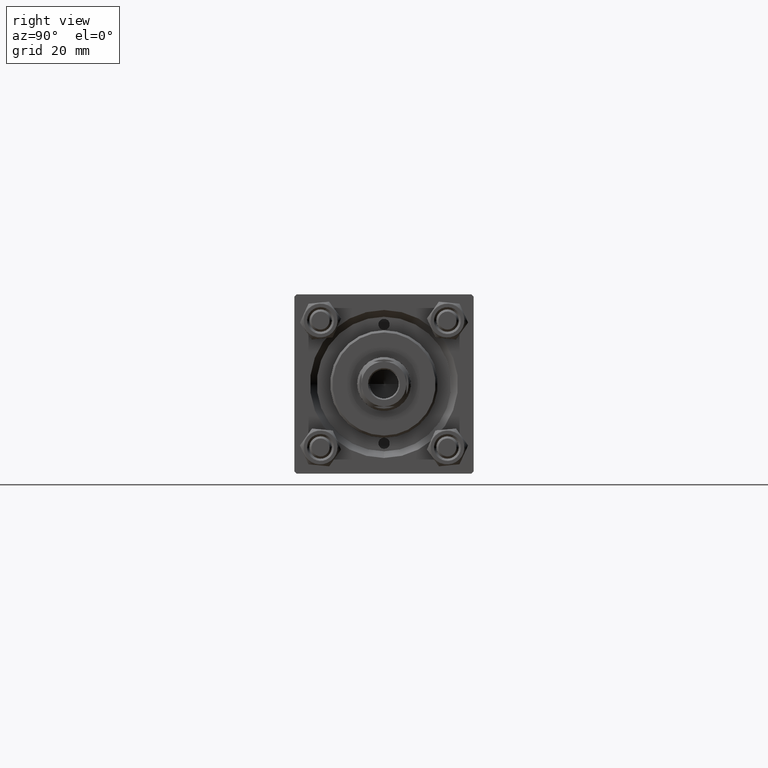
[diagram: clean part render]
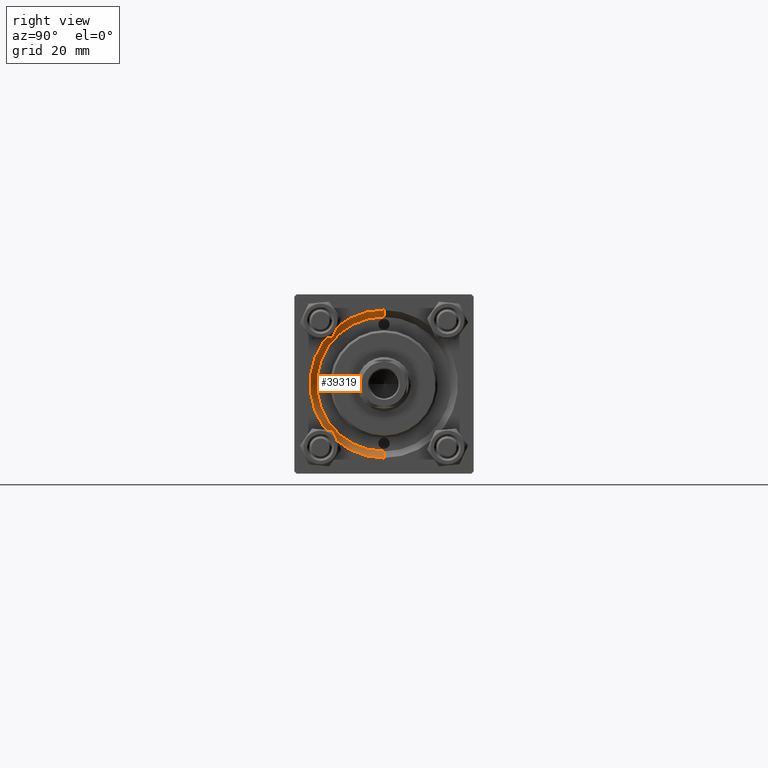
[diagram: same view with one face highlighted and labeled with its STEP entity id]
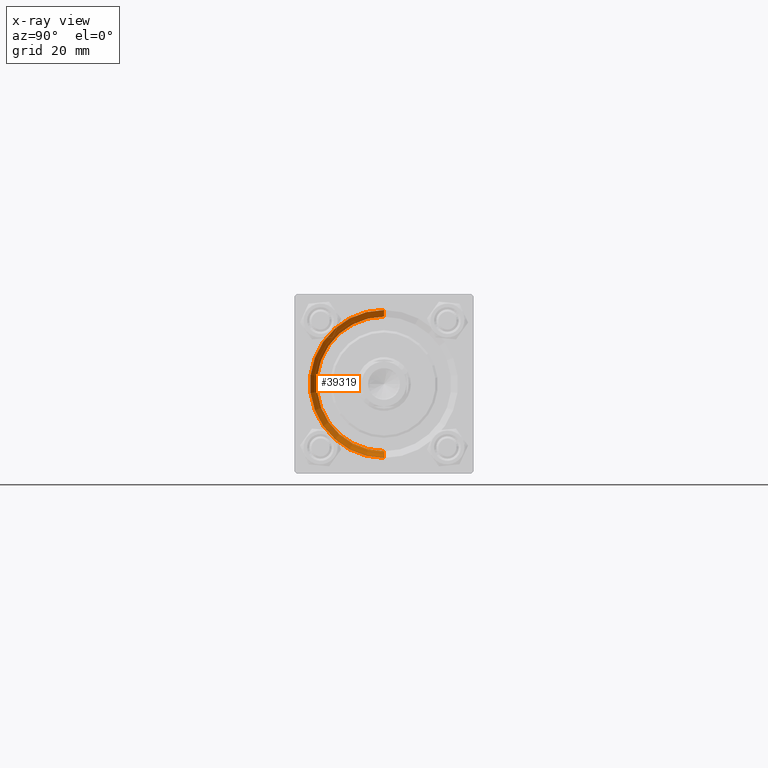
[diagram: x-ray of the same camera — body ghosted, the highlighted face saturated]
A machine part, right view. The second image highlights one B-rep face of the part: STEP entity #39319.
The next image is the same camera in x-ray: the body ghosted, the highlighted face saturated — about 0% of this face is hidden behind the body in this view.
In plain terms, the highlighted conical surface has half-angle 45 deg.
Its self-contained STEP definition (entity closure, byte-faithful):
#641 = VERTEX_POINT ( 'NONE', #21679 ) ;
#4801 = ORIENTED_EDGE ( 'NONE', *, *, #33085, .T. ) ;
#6487 = CARTESIAN_POINT ( 'NONE',  ( 117.5000000000000000, 0.000000000000000000, 0.000000000000000000 ) ) ;
#7003 = AXIS2_PLACEMENT_3D ( 'NONE', #6487, #29970, #11276 ) ;
#7033 = CIRCLE ( 'NONE', #11928, 16.50000000000001421 ) ;
#10416 = AXIS2_PLACEMENT_3D ( 'NONE', #49106, #30190, #29944 ) ;
#11276 = DIRECTION ( 'NONE',  ( 0.000000000000000000, 0.000000000000000000, 1.000000000000000000 ) ) ;
#11367 = CARTESIAN_POINT ( 'NONE',  ( 117.5000000000000000, 0.000000000000000000, -15.00000000000000000 ) ) ;
#11928 = AXIS2_PLACEMENT_3D ( 'NONE', #18464, #33588, #14419 ) ;
#13439 = EDGE_CURVE ( 'NONE', #641, #47069, #7033, .T. ) ;
#13992 = ORIENTED_EDGE ( 'NONE', *, *, #22840, .F. ) ;
#14419 = DIRECTION ( 'NONE',  ( 0.000000000000000000, 0.000000000000000000, 1.000000000000000000 ) ) ;
#15953 = VERTEX_POINT ( 'NONE', #23037 ) ;
#16683 = DIRECTION ( 'NONE',  ( 0.7071067811865474617, 8.659560562354932858E-17, 0.7071067811865474617 ) ) ;
#18464 = CARTESIAN_POINT ( 'NONE',  ( 119.0000000000000142, 0.000000000000000000, 0.000000000000000000 ) ) ;
#21679 = CARTESIAN_POINT ( 'NONE',  ( 119.0000000000000142, 0.000000000000000000, -16.50000000000001421 ) ) ;
#21694 = CARTESIAN_POINT ( 'NONE',  ( 117.5000000000000000, 1.836970198721029589E-15, 15.00000000000000000 ) ) ;
#22840 = EDGE_CURVE ( 'NONE', #38476, #641, #44566, .T. ) ;
#23037 = CARTESIAN_POINT ( 'NONE',  ( 117.5000000000000000, 1.836970198721029589E-15, 15.00000000000000000 ) ) ;
#23141 = CIRCLE ( 'NONE', #7003, 15.00000000000000000 ) ;
#28589 = EDGE_CURVE ( 'NONE', #15953, #38476, #23141, .T. ) ;
#29944 = DIRECTION ( 'NONE',  ( 0.000000000000000000, 0.000000000000000000, -1.000000000000000000 ) ) ;
#29970 = DIRECTION ( 'NONE',  ( 1.000000000000000000, 0.000000000000000000, 0.000000000000000000 ) ) ;
#30190 = DIRECTION ( 'NONE',  ( 1.000000000000000000, 0.000000000000000000, 0.000000000000000000 ) ) ;
#30928 = ORIENTED_EDGE ( 'NONE', *, *, #13439, .F. ) ;
#31181 = ORIENTED_EDGE ( 'NONE', *, *, #28589, .F. ) ;
#31226 = CARTESIAN_POINT ( 'NONE',  ( 119.0000000000000142, 2.020667218593134678E-15, 16.50000000000001421 ) ) ;
#33085 = EDGE_CURVE ( 'NONE', #15953, #47069, #40849, .T. ) ;
#33588 = DIRECTION ( 'NONE',  ( -1.000000000000000000, -0.000000000000000000, -0.000000000000000000 ) ) ;
#35128 = EDGE_LOOP ( 'NONE', ( #31181, #4801, #30928, #13992 ) ) ;
#38476 = VERTEX_POINT ( 'NONE', #11367 ) ;
#39319 = ADVANCED_FACE ( 'NONE', ( #49361 ), #42695, .F. ) ;
#40849 = LINE ( 'NONE', #21694, #44177 ) ;
#42695 = CONICAL_SURFACE ( 'NONE', #10416, 15.00000000000000000, 0.7853981633974482790 ) ;
#44177 = VECTOR ( 'NONE', #16683, 1000.000000000000114 ) ;
#44566 = LINE ( 'NONE', #48361, #46729 ) ;
#46729 = VECTOR ( 'NONE', #49100, 1000.000000000000114 ) ;
#47069 = VERTEX_POINT ( 'NONE', #31226 ) ;
#48361 = CARTESIAN_POINT ( 'NONE',  ( 117.5000000000000000, 0.000000000000000000, -15.00000000000000000 ) ) ;
#49100 = DIRECTION ( 'NONE',  ( 0.7071067811865474617, 0.000000000000000000, -0.7071067811865474617 ) ) ;
#49106 = CARTESIAN_POINT ( 'NONE',  ( 117.5000000000000000, 0.000000000000000000, 0.000000000000000000 ) ) ;
#49361 = FACE_OUTER_BOUND ( 'NONE', #35128, .T. ) ;